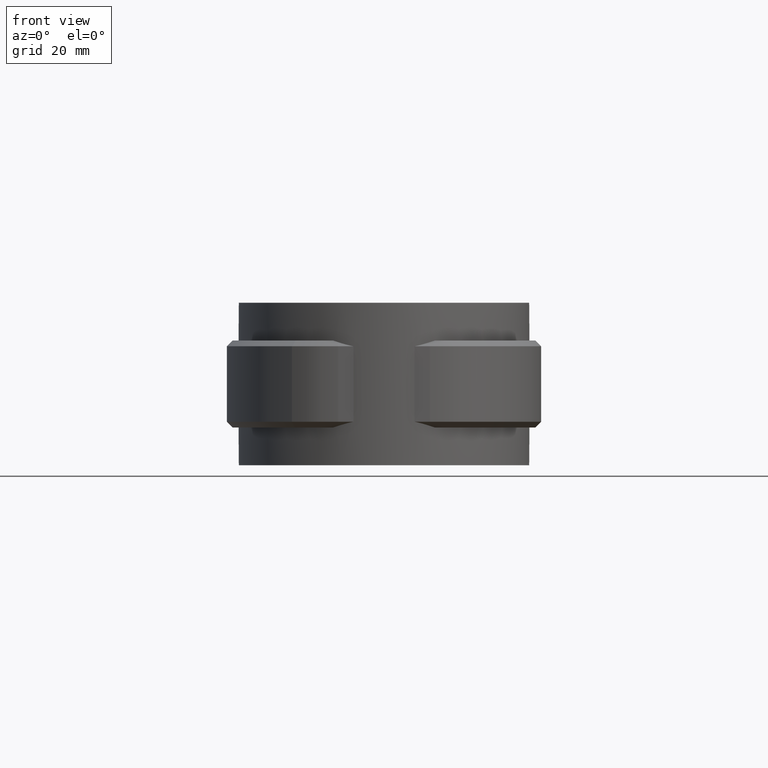
[diagram: clean part render]
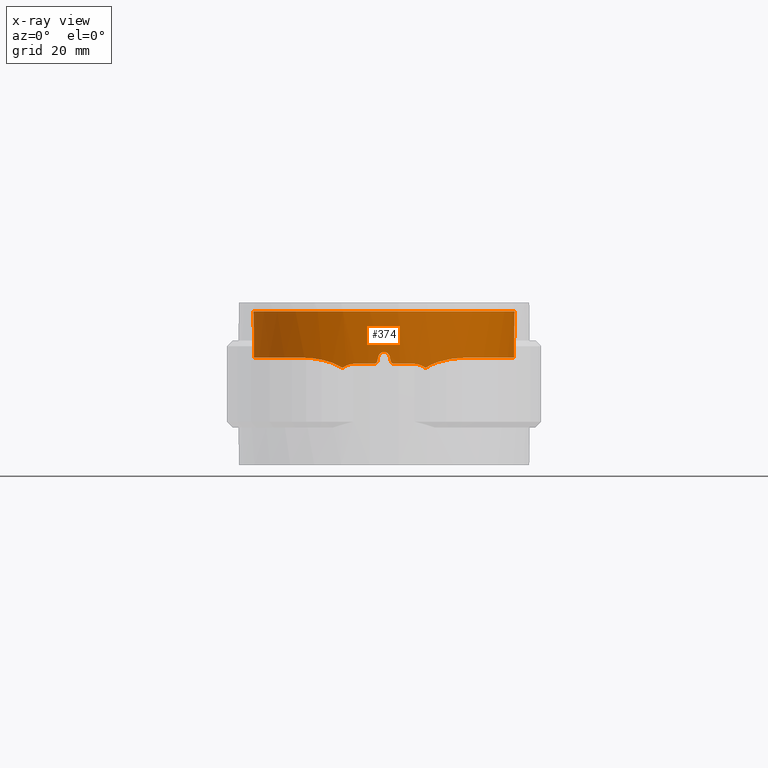
[diagram: x-ray — body ghosted, one internal face saturated and labeled with its STEP entity id]
A machine part, front view, then the same camera in x-ray: the body is ghosted and one INTERNAL B-rep face — a face not visible from any outside direction — is saturated and labeled: STEP entity #374.
In plain terms, the highlighted cylindrical surface (partial cylindrical patch) has radius 22.5 mm, axis along (0, 0, 1).
Its self-contained STEP definition (entity closure, byte-faithful):
#374 = ADVANCED_FACE( '', ( #717 ), #718, .F. );
#717 = FACE_OUTER_BOUND( '', #1618, .T. );
#718 = CYLINDRICAL_SURFACE( '', #1619, 22.5000000000000 );
#1618 = EDGE_LOOP( '', ( #2945, #2946, #2947, #2948, #2949, #2950, #2951, #2952, #2953, #2954, #2955, #2956, #2957, #2958, #2959, #2960 ) );
#1619 = AXIS2_PLACEMENT_3D( '', #2961, #2962, #2963 );
#2945 = ORIENTED_EDGE( '', *, *, #6178, .T. );
#2946 = ORIENTED_EDGE( '', *, *, #6149, .T. );
#2947 = ORIENTED_EDGE( '', *, *, #6153, .T. );
#2948 = ORIENTED_EDGE( '', *, *, #6182, .T. );
#2949 = ORIENTED_EDGE( '', *, *, #6183, .T. );
#2950 = ORIENTED_EDGE( '', *, *, #6184, .T. );
#2951 = ORIENTED_EDGE( '', *, *, #6185, .T. );
#2952 = ORIENTED_EDGE( '', *, *, #6186, .T. );
#2953 = ORIENTED_EDGE( '', *, *, #6187, .T. );
#2954 = ORIENTED_EDGE( '', *, *, #6188, .T. );
#2955 = ORIENTED_EDGE( '', *, *, #6179, .T. );
#2956 = ORIENTED_EDGE( '', *, *, #6171, .T. );
#2957 = ORIENTED_EDGE( '', *, *, #6189, .F. );
#2958 = ORIENTED_EDGE( '', *, *, #6142, .T. );
#2959 = ORIENTED_EDGE( '', *, *, #6190, .T. );
#2960 = ORIENTED_EDGE( '', *, *, #6167, .T. );
#2961 = CARTESIAN_POINT( '', ( 0.000000000000000, 0.000000000000000, 0.000000000000000 ) );
#2962 = DIRECTION( '', ( 0.000000000000000, 0.000000000000000, 1.00000000000000 ) );
#2963 = DIRECTION( '', ( 1.00000000000000, -6.12303176911189E-017, 0.000000000000000 ) );
#6142 = EDGE_CURVE( '', #7089, #7087, #7090, .T. );
#6149 = EDGE_CURVE( '', #7102, #7100, #7103, .T. );
#6153 = EDGE_CURVE( '', #7100, #7107, #7109, .T. );
#6167 = EDGE_CURVE( '', #7134, #7132, #7135, .T. );
#6171 = EDGE_CURVE( '', #7141, #7142, #7143, .T. );
#6178 = EDGE_CURVE( '', #7132, #7102, #7154, .T. );
#6179 = EDGE_CURVE( '', #7155, #7141, #7156, .T. );
#6182 = EDGE_CURVE( '', #7107, #7160, #7161, .T. );
#6183 = EDGE_CURVE( '', #7160, #7162, #7163, .T. );
#6184 = EDGE_CURVE( '', #7162, #7164, #7165, .T. );
#6185 = EDGE_CURVE( '', #7164, #7166, #7167, .T. );
#6186 = EDGE_CURVE( '', #7166, #7168, #7169, .T. );
#6187 = EDGE_CURVE( '', #7168, #7170, #7171, .T. );
#6188 = EDGE_CURVE( '', #7170, #7155, #7172, .T. );
#6189 = EDGE_CURVE( '', #7089, #7142, #7173, .T. );
#6190 = EDGE_CURVE( '', #7087, #7134, #7174, .T. );
#7087 = VERTEX_POINT( '', #8773 );
#7089 = VERTEX_POINT( '', #8775 );
#7090 = CIRCLE( '', #8776, 22.5000000000000 );
#7100 = VERTEX_POINT( '', #8816 );
#7102 = VERTEX_POINT( '', #8819 );
#7103 = B_SPLINE_CURVE_WITH_KNOTS( '', 3, ( #8820, #8821, #8822, #8823, #8824, #8825, #8826, #8827, #8828, #8829 ), .UNSPECIFIED., .F., .F., ( 4, 2, 2, 2, 4 ), ( 0.00881734214132488, 0.00940934226123539, 0.0100013423811459, 0.0105933425010564, 0.0111853426209669 ), .UNSPECIFIED. );
#7107 = VERTEX_POINT( '', #8859 );
#7109 = CIRCLE( '', #8862, 22.5000000000000 );
#7132 = VERTEX_POINT( '', #9127 );
#7134 = VERTEX_POINT( '', #9135 );
#7135 = B_SPLINE_CURVE_WITH_KNOTS( '', 3, ( #9136, #9137, #9138, #9139, #9140, #9141, #9142, #9143, #9144, #9145, #9146, #9147, #9148, #9149, #9150, #9151, #9152, #9153, #9154, #9155, #9156, #9157, #9158, #9159, #9160, #9161, #9162, #9163, #9164, #9165, #9166, #9167, #9168, #9169, #9170, #9171, #9172, #9173, #9174, #9175, #9176, #9177, #9178, #9179, #9180, #9181 ), .UNSPECIFIED., .F., .F., ( 4, 2, 2, 2, 2, 2, 2, 2, 2, 2, 2, 2, 2, 2, 2, 2, 2, 2, 2, 2, 2, 2, 4 ), ( 1.01522088571945E-017, 0.00310221661590014, 0.00620443323180027, 0.00775554153975034, 0.00930664984770041, 0.0124088664636005, 0.0139599747715506, 0.0155110830795007, 0.0186132996954008, 0.0217155163113009, 0.0232666246192510, 0.0248177329272010, 0.0279199495431011, 0.0294710578510512, 0.0310221661590013, 0.0341243827749014, 0.0372265993908015, 0.0387777076987515, 0.0403288160067016, 0.0434310326226017, 0.0449821409305518, 0.0465332492385018, 0.0496354658544020 ), .UNSPECIFIED. );
#7141 = VERTEX_POINT( '', #9217 );
#7142 = VERTEX_POINT( '', #9218 );
#7143 = B_SPLINE_CURVE_WITH_KNOTS( '', 3, ( #9219, #9220, #9221, #9222, #9223, #9224, #9225, #9226, #9227, #9228, #9229, #9230, #9231, #9232, #9233, #9234, #9235, #9236, #9237, #9238, #9239, #9240, #9241, #9242, #9243, #9244, #9245, #9246, #9247, #9248, #9249, #9250, #9251, #9252, #9253, #9254, #9255, #9256, #9257, #9258, #9259, #9260, #9261, #9262, #9263, #9264 ), .UNSPECIFIED., .F., .F., ( 4, 2, 2, 2, 2, 2, 2, 2, 2, 2, 2, 2, 2, 2, 2, 2, 2, 2, 2, 2, 2, 2, 4 ), ( 9.81307786677359E-018, 0.00310221631902395, 0.00620443263804790, 0.00775554079755988, 0.00930664895707185, 0.0124088652760958, 0.0139599734356078, 0.0155110815951197, 0.0186132979141437, 0.0217155142331676, 0.0232666223926796, 0.0248177305521916, 0.0279199468712155, 0.0294710550307275, 0.0310221631902395, 0.0341243795092634, 0.0372265958282873, 0.0387777039877993, 0.0403288121473113, 0.0434310284663352, 0.0449821366258472, 0.0465332447853591, 0.0496354611043831 ), .UNSPECIFIED. );
#7154 = B_SPLINE_CURVE_WITH_KNOTS( '', 3, ( #9365, #9366, #9367, #9368, #9369, #9370, #9371, #9372, #9373, #9374 ), .UNSPECIFIED., .F., .F., ( 4, 2, 2, 2, 4 ), ( 0.000000000000000, 0.00194074299128403, 0.00388148598256806, 0.00582222897385210, 0.00776297196513613 ), .UNSPECIFIED. );
#7155 = VERTEX_POINT( '', #9375 );
#7156 = B_SPLINE_CURVE_WITH_KNOTS( '', 3, ( #9376, #9377, #9378, #9379, #9380, #9381, #9382, #9383, #9384, #9385 ), .UNSPECIFIED., .F., .F., ( 4, 2, 2, 2, 4 ), ( 0.000125817398426371, 0.00205374639228974, 0.00398167538615311, 0.00590960438001648, 0.00783753337387985 ), .UNSPECIFIED. );
#7160 = VERTEX_POINT( '', #9419 );
#7161 = B_SPLINE_CURVE_WITH_KNOTS( '', 3, ( #9420, #9421, #9422, #9423, #9424, #9425 ), .UNSPECIFIED., .F., .F., ( 4, 2, 4 ), ( 8.20849171219253E-018, 0.000336171757046730, 0.000672343514093452 ), .UNSPECIFIED. );
#7162 = VERTEX_POINT( '', #9426 );
#7163 = ELLIPSE( '', #9427, 102.500052287620, 22.5000000000000 );
#7164 = VERTEX_POINT( '', #9428 );
#7165 = B_SPLINE_CURVE_WITH_KNOTS( '', 3, ( #9429, #9430, #9431, #9432, #9433, #9434, #9435, #9436, #9437, #9438 ), .UNSPECIFIED., .F., .F., ( 4, 2, 2, 2, 4 ), ( 0.000000000000000, 0.000671640201386741, 0.00134328040277348, 0.00201492060416022, 0.00268656080554696 ), .UNSPECIFIED. );
#7166 = VERTEX_POINT( '', #9439 );
#7167 = ELLIPSE( '', #9440, 102.500104575276, 22.5000000000000 );
#7168 = VERTEX_POINT( '', #9441 );
#7169 = B_SPLINE_CURVE_WITH_KNOTS( '', 3, ( #9442, #9443, #9444, #9445, #9446, #9447 ), .UNSPECIFIED., .F., .F., ( 4, 2, 4 ), ( 4.33680868994202E-019, 0.000336179392193412, 0.000672358784386824 ), .UNSPECIFIED. );
#7170 = VERTEX_POINT( '', #9448 );
#7171 = CIRCLE( '', #9449, 22.5000000000000 );
#7172 = B_SPLINE_CURVE_WITH_KNOTS( '', 3, ( #9450, #9451, #9452, #9453, #9454, #9455 ), .UNSPECIFIED., .F., .F., ( 4, 2, 4 ), ( 2.60208521396521E-018, 0.00118659643506709, 0.00237319287013418 ), .UNSPECIFIED. );
#7173 = LINE( '', #9456, #9457 );
#7174 = LINE( '', #9458, #9459 );
#8773 = CARTESIAN_POINT( '', ( 5.96938775510204, 21.6936951630938, 0.000000000000000 ) );
#8775 = CARTESIAN_POINT( '', ( -5.96938775510204, 21.6936951630938, 0.000000000000000 ) );
#8776 = AXIS2_PLACEMENT_3D( '', #12478, #12479, #12480 );
#8816 = CARTESIAN_POINT( '', ( 5.00000000000000, -21.9374109684803, -9.00000000000000 ) );
#8819 = CARTESIAN_POINT( '', ( 7.14327262210691, -21.3359709468835, -9.73298311040086 ) );
#8820 = CARTESIAN_POINT( '', ( 7.14327262210691, -21.3359709468835, -9.73298311040086 ) );
#8821 = CARTESIAN_POINT( '', ( 6.99215887659031, -21.3865637548631, -9.61593360672520 ) );
#8822 = CARTESIAN_POINT( '', ( 6.83209769415344, -21.4383736176516, -9.51161563615158 ) );
#8823 = CARTESIAN_POINT( '', ( 6.49347178922259, -21.5433573612622, -9.32879122702203 ) );
#8824 = CARTESIAN_POINT( '', ( 6.31667071375172, -21.5959452745779, -9.25149589521894 ) );
#8825 = CARTESIAN_POINT( '', ( 5.95575769446516, -21.6982518073082, -9.12762280924841 ) );
#8826 = CARTESIAN_POINT( '', ( 5.77053819296456, -21.7483203548861, -9.08042813749268 ) );
#8827 = CARTESIAN_POINT( '', ( 5.39012748592850, -21.8457106769419, -9.01646711306007 ) );
#8828 = CARTESIAN_POINT( '', ( 5.19526159222400, -21.8929067212598, -8.99999999999996 ) );
#8829 = CARTESIAN_POINT( '', ( 5.00000000000000, -21.9374109684803, -8.99999999999996 ) );
#8859 = CARTESIAN_POINT( '', ( 1.64999999999995, -22.4394184416620, -9.00000000000000 ) );
#8862 = AXIS2_PLACEMENT_3D( '', #12488, #12489, #12490 );
#9127 = CARTESIAN_POINT( '', ( 13.7117062044655, -17.8392576348464, -7.99527260252385 ) );
#9135 = CARTESIAN_POINT( '', ( 5.96938775510203, 21.6936951630937, -7.99706180512241 ) );
#9136 = CARTESIAN_POINT( '', ( 5.96938775510203, 21.6936951630938, -7.99706180512243 ) );
#9137 = CARTESIAN_POINT( '', ( 6.98075585043438, 21.4154000972329, -7.99884206986779 ) );
#9138 = CARTESIAN_POINT( '', ( 7.96077685677586, 21.0700332084098, -8.00117174957457 ) );
#9139 = CARTESIAN_POINT( '', ( 9.86067696135208, 20.2506127667962, -8.00367823539348 ) );
#9140 = CARTESIAN_POINT( '', ( 10.7805486496828, 19.7765433689410, -8.00386285188496 ) );
#9141 = CARTESIAN_POINT( '', ( 12.1145013404169, 18.9673227282076, -8.00237042611906 ) );
#9142 = CARTESIAN_POINT( '', ( 12.5525446094514, 18.6804143156261, -8.00159845720753 ) );
#9143 = CARTESIAN_POINT( '', ( 13.4080644599689, 18.0761738930846, -7.99977813730590 ) );
#9144 = CARTESIAN_POINT( '', ( 13.8228890724027, 17.7608346577226, -7.99873834117114 ) );
#9145 = CARTESIAN_POINT( '', ( 15.0295599431552, 16.7761845514034, -7.99590660183703 ) );
#9146 = CARTESIAN_POINT( '', ( 15.7837780892772, 16.0684198019212, -7.99477903313715 ) );
#9147 = CARTESIAN_POINT( '', ( 16.8404188555885, 14.9304465503853, -7.99584977716436 ) );
#9148 = CARTESIAN_POINT( '', ( 17.1801405347536, 14.5383560561204, -7.99648704406689 ) );
#9149 = CARTESIAN_POINT( '', ( 17.8341673548127, 13.7282009152310, -7.99784461522722 ) );
#9150 = CARTESIAN_POINT( '', ( 18.1495836651245, 13.3084970490499, -7.99856651128179 ) );
#9151 = CARTESIAN_POINT( '', ( 19.0476491003084, 12.0221041186313, -8.00031961751485 ) );
#9152 = CARTESIAN_POINT( '', ( 19.5805544712932, 11.1319967358706, -8.00084857551027 ) );
#9153 = CARTESIAN_POINT( '', ( 20.5191448390250, 9.28892673056613, -7.99998800040115 ) );
#9154 = CARTESIAN_POINT( '', ( 20.9248235542925, 8.33596100379306, -7.99860038736866 ) );
#9155 = CARTESIAN_POINT( '', ( 21.4356297800931, 6.85823574904988, -7.99657280253230 ) );
#9156 = CARTESIAN_POINT( '', ( 21.5900200812487, 6.35561073448841, -7.99592560935238 ) );
#9157 = CARTESIAN_POINT( '', ( 21.8616563019193, 5.34703082596471, -7.99520168089425 ) );
#9158 = CARTESIAN_POINT( '', ( 21.9792656429569, 4.84051713788752, -7.99519766970569 ) );
#9159 = CARTESIAN_POINT( '', ( 22.2786737448792, 3.31445223719137, -7.99629152030742 ) );
#9160 = CARTESIAN_POINT( '', ( 22.4073009638362, 2.28840726987893, -7.99809908567389 ) );
#9161 = CARTESIAN_POINT( '', ( 22.4939162965825, 0.736352987044654, -7.99994064501332 ) );
#9162 = CARTESIAN_POINT( '', ( 22.5050049826860, 0.216829505148815, -8.00042762660577 ) );
#9163 = CARTESIAN_POINT( '', ( 22.4908627658155, -0.826653708805101, -8.00095660626207 ) );
#9164 = CARTESIAN_POINT( '', ( 22.4653966278085, -1.35204722464080, -8.00099612026925 ) );
#9165 = CARTESIAN_POINT( '', ( 22.3352131646499, -2.91145363337366, -8.00041773283653 ) );
#9166 = CARTESIAN_POINT( '', ( 22.1772745186765, -3.93545839902459, -7.99903789634234 ) );
#9167 = CARTESIAN_POINT( '', ( 21.7228024784732, -5.95308242580535, -7.99620736581977 ) );
#9168 = CARTESIAN_POINT( '', ( 21.4262723457426, -6.94670244266306, -7.99481595815935 ) );
#9169 = CARTESIAN_POINT( '', ( 20.8742398455908, -8.41362384671185, -7.99570317523643 ) );
#9170 = CARTESIAN_POINT( '', ( 20.6720257053310, -8.89880896754328, -7.99639753743607 ) );
#9171 = CARTESIAN_POINT( '', ( 20.2379711487000, -9.84611454265477, -7.99795913403041 ) );
#9172 = CARTESIAN_POINT( '', ( 20.0054474394648, -10.3101983100751, -7.99882696641999 ) );
#9173 = CARTESIAN_POINT( '', ( 19.2622400637873, -11.6742697206325, -8.00105659541909 ) );
#9174 = CARTESIAN_POINT( '', ( 18.7061341701137, -12.5462096884944, -8.00195375509524 ) );
#9175 = CARTESIAN_POINT( '', ( 17.7804674699081, -13.7976151865469, -8.00154110344581 ) );
#9176 = CARTESIAN_POINT( '', ( 17.4566074550424, -14.2053001162130, -8.00113304400663 ) );
#9177 = CARTESIAN_POINT( '', ( 16.7775101201251, -15.0012949241131, -7.99991310746937 ) );
#9178 = CARTESIAN_POINT( '', ( 16.4229958730320, -15.3885740334930, -7.99910221180664 ) );
#9179 = CARTESIAN_POINT( '', ( 15.3249521516951, -16.5072062587204, -7.99661312430510 ) );
#9180 = CARTESIAN_POINT( '', ( 14.5433832852783, -17.2000095213585, -7.99478010994991 ) );
#9181 = CARTESIAN_POINT( '', ( 13.7117062044653, -17.8392576348462, -7.99527260252372 ) );
#9217 = CARTESIAN_POINT( '', ( -13.7117062044655, -17.8392576348464, -7.99527260252385 ) );
#9218 = CARTESIAN_POINT( '', ( -5.96938775510206, 21.6936951630938, -7.99706180512244 ) );
#9219 = CARTESIAN_POINT( '', ( -13.7117062044655, -17.8392576348464, -7.99527260252390 ) );
#9220 = CARTESIAN_POINT( '', ( -14.5433804127241, -17.2000117292770, -7.99478011165112 ) );
#9221 = CARTESIAN_POINT( '', ( -15.3207209108286, -16.5104747735151, -7.99660419402953 ) );
#9222 = CARTESIAN_POINT( '', ( -16.7711592020991, -15.0349088953749, -7.99989079026460 ) );
#9223 = CARTESIAN_POINT( '', ( -17.4442441345035, -14.2488680798247, -8.00136343441243 ) );
#9224 = CARTESIAN_POINT( '', ( -18.3743930356678, -12.9962361595927, -8.00181894641419 ) );
#9225 = CARTESIAN_POINT( '', ( -18.6718468618381, -12.5652851231883, -8.00169979607511 ) );
#9226 = CARTESIAN_POINT( '', ( -19.2362319096804, -11.6829635527953, -8.00095581804544 ) );
#9227 = CARTESIAN_POINT( '', ( -19.5014580993852, -11.2344399875099, -8.00033556248663 ) );
#9228 = CARTESIAN_POINT( '', ( -20.2475532164671, -9.86735162475107, -7.99810724867380 ) );
#9229 = CARTESIAN_POINT( '', ( -20.6790679259405, -8.92736869282568, -7.99605181430980 ) );
#9230 = CARTESIAN_POINT( '', ( -21.2283795662887, -7.47488070175046, -7.99511744497128 ) );
#9231 = CARTESIAN_POINT( '', ( -21.3950988426493, -6.98360725375853, -7.99527844761146 ) );
#9232 = CARTESIAN_POINT( '', ( -21.6952006701347, -5.98659274078912, -7.99617036034505 ) );
#9233 = CARTESIAN_POINT( '', ( -21.8289938922316, -5.47891482154123, -7.99687298759175 ) );
#9234 = CARTESIAN_POINT( '', ( -22.1754600657687, -3.94878446444681, -7.99901840758695 ) );
#9235 = CARTESIAN_POINT( '', ( -22.3332293932058, -2.92341094463887, -8.00040114645379 ) );
#9236 = CARTESIAN_POINT( '', ( -22.5072356945685, -0.862443082137185, -8.00118962085165 ) );
#9237 = CARTESIAN_POINT( '', ( -22.5234656457115, 0.173151767629297, -8.00059581030478 ) );
#9238 = CARTESIAN_POINT( '', ( -22.4391064606146, 1.73439407466918, -7.99876261799482 ) );
#9239 = CARTESIAN_POINT( '', ( -22.3924903362133, 2.25812606751292, -7.99801201243187 ) );
#9240 = CARTESIAN_POINT( '', ( -22.2636010939312, 3.29466585930831, -7.99660201374966 ) );
#9241 = CARTESIAN_POINT( '', ( -22.1814539450357, 3.80812644910592, -7.99594345184428 ) );
#9242 = CARTESIAN_POINT( '', ( -21.8830778101087, 5.33439876923423, -7.99483234437223 ) );
#9243 = CARTESIAN_POINT( '', ( -21.6151555633698, 6.33316649196145, -7.99585755088088 ) );
#9244 = CARTESIAN_POINT( '', ( -21.1099030023078, 7.80323536708028, -7.99786698184264 ) );
#9245 = CARTESIAN_POINT( '', ( -20.9241968412140, 8.28856146271295, -7.99857689898198 ) );
#9246 = CARTESIAN_POINT( '', ( -20.5174748707897, 9.24962104615927, -7.99973729810894 ) );
#9247 = CARTESIAN_POINT( '', ( -20.2956999747689, 9.72659454776966, -8.00018652379472 ) );
#9248 = CARTESIAN_POINT( '', ( -19.5868901118593, 11.1216928385967, -8.00085508583561 ) );
#9249 = CARTESIAN_POINT( '', ( -19.0543412733394, 12.0104712315914, -8.00032623285349 ) );
#9250 = CARTESIAN_POINT( '', ( -17.8723508134009, 13.7076043482623, -7.99803162103247 ) );
#9251 = CARTESIAN_POINT( '', ( -17.2229119481480, 14.5159609683284, -7.99626604401378 ) );
#9252 = CARTESIAN_POINT( '', ( -16.1583083778176, 15.6662702986152, -7.99514497354396 ) );
#9253 = CARTESIAN_POINT( '', ( -15.7880101037063, 16.0393324384632, -7.99508652942377 ) );
#9254 = CARTESIAN_POINT( '', ( -15.0286773574488, 16.7529192976023, -7.99597893742106 ) );
#9255 = CARTESIAN_POINT( '', ( -14.6382694692557, 17.0950046111277, -7.99682637004786 ) );
#9256 = CARTESIAN_POINT( '', ( -13.4354121092221, 18.0779469047638, -7.99964469068108 ) );
#9257 = CARTESIAN_POINT( '', ( -12.5914772613519, 18.6756934728286, -8.00180745434244 ) );
#9258 = CARTESIAN_POINT( '', ( -11.2621430291676, 19.4854648640754, -8.00333784758651 ) );
#9259 = CARTESIAN_POINT( '', ( -10.8084227984482, 19.7408634557295, -8.00358338863217 ) );
#9260 = CARTESIAN_POINT( '', ( -9.87923194932910, 20.2218809574957, -8.00345154356913 ) );
#9261 = CARTESIAN_POINT( '', ( -9.40481739064604, 20.4468191575700, -8.00307210983594 ) );
#9262 = CARTESIAN_POINT( '', ( -7.96592284268606, 21.0686043325002, -8.00118777354150 ) );
#9263 = CARTESIAN_POINT( '', ( -6.98075618890948, 21.4154000040958, -7.99884207046359 ) );
#9264 = CARTESIAN_POINT( '', ( -5.96938775510206, 21.6936951630938, -7.99706180512244 ) );
#9365 = CARTESIAN_POINT( '', ( 13.7117062044654, -17.8392576348464, -7.99527260252386 ) );
#9366 = CARTESIAN_POINT( '', ( 13.1971550426915, -18.2347547178432, -8.00551442203989 ) );
#9367 = CARTESIAN_POINT( '', ( 12.6683162963906, -18.6058772647636, -8.04166712451961 ) );
#9368 = CARTESIAN_POINT( '', ( 11.5831384528451, -19.3001505216686, -8.17197429164942 ) );
#9369 = CARTESIAN_POINT( '', ( 11.0263511985933, -19.6232377653303, -8.26629937468361 ) );
#9370 = CARTESIAN_POINT( '', ( 9.90396039933317, -20.2129525195565, -8.52717949936099 ) );
#9371 = CARTESIAN_POINT( '', ( 9.33340109467985, -20.4818313983357, -8.69477633151503 ) );
#9372 = CARTESIAN_POINT( '', ( 8.21652597332661, -20.9548680347472, -9.12604134829095 ) );
#9373 = CARTESIAN_POINT( '', ( 7.66683825445093, -21.1606814296306, -9.38762569061233 ) );
#9374 = CARTESIAN_POINT( '', ( 7.14327262210685, -21.3359709468835, -9.73298311040077 ) );
#9375 = CARTESIAN_POINT( '', ( -7.14327262210697, -21.3359709468835, -9.73298311040082 ) );
#9376 = CARTESIAN_POINT( '', ( -7.14327262210693, -21.3359709468835, -9.73298311040075 ) );
#9377 = CARTESIAN_POINT( '', ( -7.66667298768693, -21.1607367608623, -9.38773470484032 ) );
#9378 = CARTESIAN_POINT( '', ( -8.21652101193677, -20.9548826440573, -9.12601820945216 ) );
#9379 = CARTESIAN_POINT( '', ( -9.33419270527727, -20.4814836060906, -8.69449573489161 ) );
#9380 = CARTESIAN_POINT( '', ( -9.90486920913656, -20.2124929431923, -8.52694723168259 ) );
#9381 = CARTESIAN_POINT( '', ( -11.0264404480156, -19.6231729359720, -8.26629967966189 ) );
#9382 = CARTESIAN_POINT( '', ( -11.5828184058399, -19.3003493063086, -8.17201780467816 ) );
#9383 = CARTESIAN_POINT( '', ( -12.6683403128945, -18.6058678723912, -8.04165915994959 ) );
#9384 = CARTESIAN_POINT( '', ( -13.1972204364101, -18.2347044545713, -8.00551312041874 ) );
#9385 = CARTESIAN_POINT( '', ( -13.7117062044654, -17.8392576348464, -7.99527260252383 ) );
#9419 = CARTESIAN_POINT( '', ( 1.16219499999999, -22.4699644588498, -8.60975599999999 ) );
#9420 = CARTESIAN_POINT( '', ( 1.64999999999995, -22.4394184416620, -8.99999999999995 ) );
#9421 = CARTESIAN_POINT( '', ( 1.53663857312741, -22.4477540567238, -9.00000000048649 ) );
#9422 = CARTESIAN_POINT( '', ( 1.42653750796350, -22.4549077652499, -8.96146594490951 ) );
#9423 = CARTESIAN_POINT( '', ( 1.24917792905720, -22.4654723188510, -8.81973114727543 ) );
#9424 = CARTESIAN_POINT( '', ( 1.18714631626365, -22.4686739229855, -8.72065074117205 ) );
#9425 = CARTESIAN_POINT( '', ( 1.16219499999999, -22.4699644588498, -8.60975599999999 ) );
#9426 = CARTESIAN_POINT( '', ( 0.975609757981813, -22.4788386176895, -7.78048781325256 ) );
#9427 = AXIS2_PLACEMENT_3D( '', #12491, #12492, #12493 );
#9428 = CARTESIAN_POINT( '', ( -0.975610000000027, -22.4788386071857, -7.78048800000004 ) );
#9429 = CARTESIAN_POINT( '', ( 0.975609757981815, -22.4788386176895, -7.78048781325255 ) );
#9430 = CARTESIAN_POINT( '', ( 0.925759449235975, -22.4810021835427, -7.55893097562737 ) );
#9431 = CARTESIAN_POINT( '', ( 0.802000628317951, -22.4864014670564, -7.36098155732460 ) );
#9432 = CARTESIAN_POINT( '', ( 0.447420897622094, -22.4962501427644, -7.07730605249319 ) );
#9433 = CARTESIAN_POINT( '', ( 0.227104418399291, -22.5000000108343, -6.99999977550522 ) );
#9434 = CARTESIAN_POINT( '', ( -0.227106565175073, -22.4999999891657, -7.00000021762863 ) );
#9435 = CARTESIAN_POINT( '', ( -0.447458947039428, -22.4962492274986, -7.07732972456105 ) );
#9436 = CARTESIAN_POINT( '', ( -0.801998479497323, -22.4864013851462, -7.36098628756926 ) );
#9437 = CARTESIAN_POINT( '', ( -0.925759729873598, -22.4810021719004, -7.55893113598761 ) );
#9438 = CARTESIAN_POINT( '', ( -0.975610000000027, -22.4788386071857, -7.78048800000004 ) );
#9439 = CARTESIAN_POINT( '', ( -1.16219512100914, -22.4699644525910, -8.60975609337373 ) );
#9440 = AXIS2_PLACEMENT_3D( '', #12494, #12495, #12496 );
#9441 = CARTESIAN_POINT( '', ( -1.65000000000003, -22.4394184416620, -9.00000000000000 ) );
#9442 = CARTESIAN_POINT( '', ( -1.16219512100916, -22.4699644525910, -8.60975609337372 ) );
#9443 = CARTESIAN_POINT( '', ( -1.18714642767576, -22.4686739170883, -8.72065079411459 ) );
#9444 = CARTESIAN_POINT( '', ( -1.24917004909896, -22.4654727743059, -8.81972347787829 ) );
#9445 = CARTESIAN_POINT( '', ( -1.42653836187879, -22.4549077283059, -8.96146792752489 ) );
#9446 = CARTESIAN_POINT( '', ( -1.53663860698352, -22.4477540542343, -8.99999999999994 ) );
#9447 = CARTESIAN_POINT( '', ( -1.65000000000003, -22.4394184416620, -8.99999999999994 ) );
#9448 = CARTESIAN_POINT( '', ( -5.00000000000005, -21.9374109684803, -9.00000000000000 ) );
#9449 = AXIS2_PLACEMENT_3D( '', #12497, #12498, #12499 );
#9450 = CARTESIAN_POINT( '', ( -5.00000000000005, -21.9374109684803, -8.99999999999997 ) );
#9451 = CARTESIAN_POINT( '', ( -5.39131316220604, -21.8482224213978, -8.99999999999997 ) );
#9452 = CARTESIAN_POINT( '', ( -5.76938726424929, -21.7510594632201, -9.06380533853586 ) );
#9453 = CARTESIAN_POINT( '', ( -6.50063316469610, -21.5438201263256, -9.31448738522700 ) );
#9454 = CARTESIAN_POINT( '', ( -6.83813122967414, -21.4381321356039, -9.49662705679985 ) );
#9455 = CARTESIAN_POINT( '', ( -7.14327262210697, -21.3359709468835, -9.73298311040081 ) );
#9456 = CARTESIAN_POINT( '', ( -5.96938775510204, 21.6936951630938, 0.000000000000000 ) );
#9457 = VECTOR( '', #12500, 1000.00000000000 );
#9458 = CARTESIAN_POINT( '', ( 5.96938775510204, 21.6936951630938, 0.000000000000000 ) );
#9459 = VECTOR( '', #12501, 1000.00000000000 );
#12478 = CARTESIAN_POINT( '', ( 0.000000000000000, 0.000000000000000, 0.000000000000000 ) );
#12479 = DIRECTION( '', ( 0.000000000000000, 0.000000000000000, 1.00000000000000 ) );
#12480 = DIRECTION( '', ( 1.00000000000000, -6.12303176911189E-017, 0.000000000000000 ) );
#12488 = CARTESIAN_POINT( '', ( 0.000000000000000, 0.000000000000000, -9.00000000000000 ) );
#12489 = DIRECTION( '', ( 6.12303176911189E-017, 0.000000000000000, -1.00000000000000 ) );
#12490 = DIRECTION( '', ( -1.00000000000000, 0.000000000000000, -6.12303176911189E-017 ) );
#12491 = CARTESIAN_POINT( '', ( 0.000000000000000, 0.000000000000000, -3.44444212055029 ) );
#12492 = DIRECTION( '', ( -0.975609781292647, 0.000000000000000, -0.219512083143762 ) );
#12493 = DIRECTION( '', ( 0.219512083143762, 0.000000000000000, -0.975609781292647 ) );
#12494 = CARTESIAN_POINT( '', ( 0.000000000000000, 0.000000000000000, -3.44443890776446 ) );
#12495 = DIRECTION( '', ( 0.975609806487711, 0.000000000000000, -0.219511971165610 ) );
#12496 = DIRECTION( '', ( -0.219511971165610, 0.000000000000000, -0.975609806487711 ) );
#12497 = CARTESIAN_POINT( '', ( 0.000000000000000, 0.000000000000000, -9.00000000000000 ) );
#12498 = DIRECTION( '', ( 6.12303176911189E-017, 0.000000000000000, -1.00000000000000 ) );
#12499 = DIRECTION( '', ( -1.00000000000000, 0.000000000000000, -6.12303176911189E-017 ) );
#12500 = DIRECTION( '', ( 0.000000000000000, 0.000000000000000, -1.00000000000000 ) );
#12501 = DIRECTION( '', ( 0.000000000000000, 0.000000000000000, -1.00000000000000 ) );